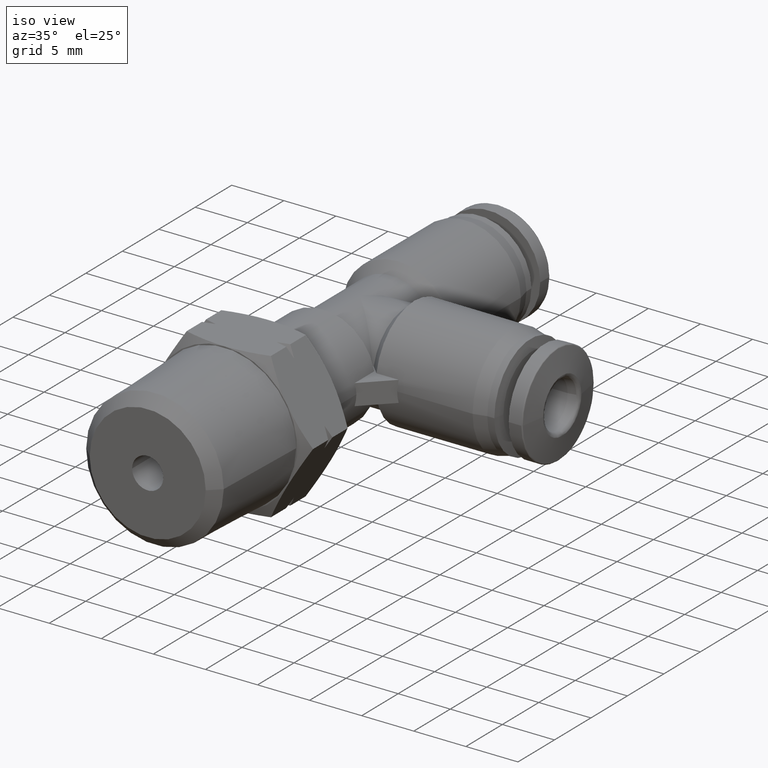
[diagram: clean part render]
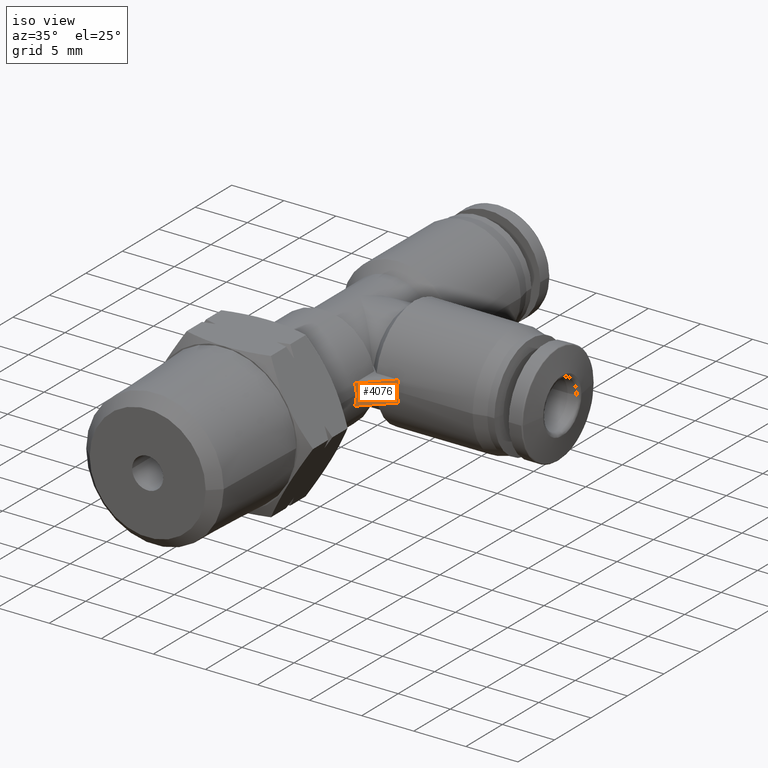
[diagram: same view with one face highlighted and labeled with its STEP entity id]
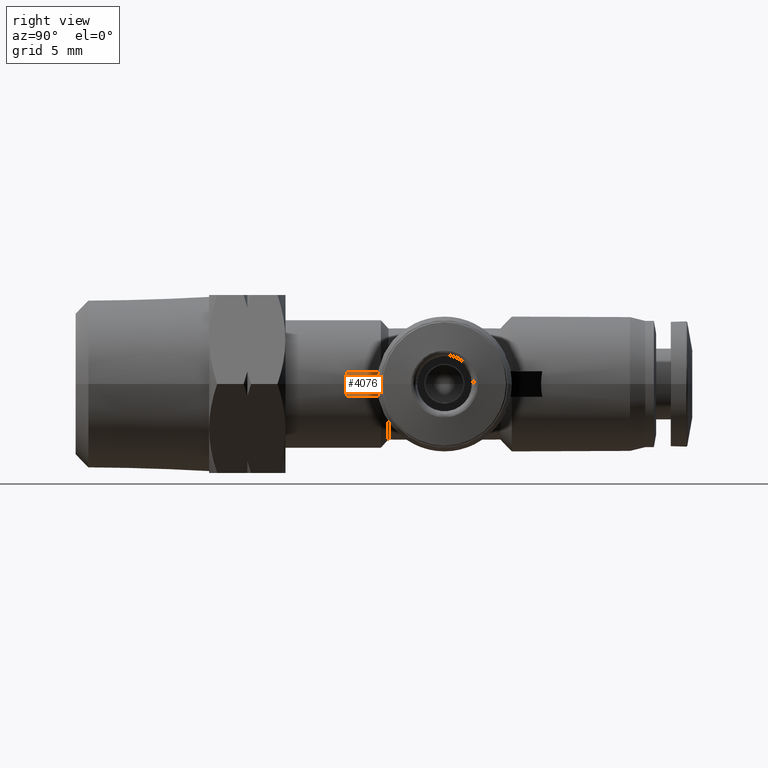
[diagram: same view with one face highlighted and labeled with its STEP entity id]
A machine part, iso view. The second image highlights one B-rep face of the part: STEP entity #4076.
A second angle (right view) of the same face is appended — the face is thin or edge-on in the first view.
In plain terms, the highlighted planar face has unit normal (0.7071, -0.7071, 0).
Its self-contained STEP definition (entity closure, byte-faithful):
#53 = CARTESIAN_POINT ( 'NONE',  ( 0.2906231102204520600, 0.2847175984096488900, 0.02638521026696140700 ) ) ;
#153 = CARTESIAN_POINT ( 'NONE',  ( 0.1975022053507918300, 0.1915966935399997000, -0.02639951658403306600 ) ) ;
#220 = VERTEX_POINT ( 'NONE', #2347 ) ;
#276 = EDGE_CURVE ( 'NONE', #4939, #2079, #375, .T. ) ;
#310 = VERTEX_POINT ( 'NONE', #1188 ) ;
#335 = CARTESIAN_POINT ( 'NONE',  ( 0.1948818897636948900, 0.1889763779529030600, 0.03937007874015748000 ) ) ;
#375 =( BOUNDED_CURVE ( )  B_SPLINE_CURVE ( 3, ( #2010, #1583, #1388, #1402 ),
 .UNSPECIFIED., .F., .F. ) 
 B_SPLINE_CURVE_WITH_KNOTS ( ( 4, 4 ),
 ( 1.224646799147353500E-016, 0.1993373049824015100 ),
 .UNSPECIFIED. ) 
 CURVE ( )  GEOMETRIC_REPRESENTATION_ITEM ( )  RATIONAL_B_SPLINE_CURVE ( ( 1.000000000000000000, 0.9966914601399901000, 0.9966914601399901000, 1.000000000000000000 ) ) 
 REPRESENTATION_ITEM ( '' )  );
#469 = CARTESIAN_POINT ( 'NONE',  ( 0.2931178948081529200, 0.2872123829973495200, 0.03937007874015748000 ) ) ;
#703 = DIRECTION ( 'NONE',  ( 0.7071067811865893200, 0.7071067811865057200, 0.0000000000000000000 ) ) ;
#936 = EDGE_CURVE ( 'NONE', #220, #2320, #1264, .T. ) ;
#1125 = EDGE_CURVE ( 'NONE', #310, #220, #2250, .T. ) ;
#1186 = VERTEX_POINT ( 'NONE', #469 ) ;
#1188 = CARTESIAN_POINT ( 'NONE',  ( 0.1948818897636949700, 0.1889763779529031200, -0.03937007874015738300 ) ) ;
#1264 =( BOUNDED_CURVE ( )  B_SPLINE_CURVE ( 3, ( #3522, #2232, #3757, #2584 ),
 .UNSPECIFIED., .F., .T. ) 
 B_SPLINE_CURVE_WITH_KNOTS ( ( 4, 4 ),
 ( 2.951775592245025100, 3.141592653589793100 ),
 .UNSPECIFIED. ) 
 CURVE ( )  GEOMETRIC_REPRESENTATION_ITEM ( )  RATIONAL_B_SPLINE_CURVE ( ( 1.000000000000000000, 0.9969997100748078100, 0.9969997100748078100, 1.000000000000000000 ) ) 
 REPRESENTATION_ITEM ( '' )  );
#1388 = CARTESIAN_POINT ( 'NONE',  ( 0.1975022053507918300, 0.1915966935399997000, 0.02639951658403309100 ) ) ;
#1402 = CARTESIAN_POINT ( 'NONE',  ( 0.1948818897636949400, 0.1889763779529031200, 0.03937007874015748000 ) ) ;
#1461 = CARTESIAN_POINT ( 'NONE',  ( 0.1988188976377122400, 0.1929133858269199100, 2.434829266020378600E-017 ) ) ;
#1516 = CARTESIAN_POINT ( 'NONE',  ( 0.1988188976377122400, 0.1929133858269198900, -0.01323259371483414400 ) ) ;
#1532 = VECTOR ( 'NONE', #703, 39.37007874015748100 ) ;
#1583 = CARTESIAN_POINT ( 'NONE',  ( 0.1988188976377122400, 0.1929133858269198900, 0.01323259371483419400 ) ) ;
#1628 = EDGE_CURVE ( 'NONE', #2079, #1186, #3599, .T. ) ;
#1659 = PLANE ( 'NONE',  #4057 ) ;
#2010 = CARTESIAN_POINT ( 'NONE',  ( 0.1988188976377122400, 0.1929133858269199100, 2.434829266020378600E-017 ) ) ;
#2026 = CARTESIAN_POINT ( 'NONE',  ( 0.1988188976376465700, 0.1929133858268542400, -0.03937007874015748000 ) ) ;
#2048 = ORIENTED_EDGE ( 'NONE', *, *, #1628, .F. ) ;
#2079 = VERTEX_POINT ( 'NONE', #3806 ) ;
#2110 =( BOUNDED_CURVE ( )  B_SPLINE_CURVE ( 3, ( #2327, #5098, #53, #3286 ),
 .UNSPECIFIED., .F., .F. ) 
 B_SPLINE_CURVE_WITH_KNOTS ( ( 4, 4 ),
 ( 3.141592653589793100, 3.331409714934561200 ),
 .UNSPECIFIED. ) 
 CURVE ( )  GEOMETRIC_REPRESENTATION_ITEM ( )  RATIONAL_B_SPLINE_CURVE ( ( 1.000000000000000000, 0.9969997100748078100, 0.9969997100748078100, 1.000000000000000000 ) ) 
 REPRESENTATION_ITEM ( '' )  );
#2232 = CARTESIAN_POINT ( 'NONE',  ( 0.2906231102204520600, 0.2847175984096489400, -0.02638521026696145600 ) ) ;
#2250 = LINE ( 'NONE', #2026, #5252 ) ;
#2289 = ORIENTED_EDGE ( 'NONE', *, *, #936, .T. ) ;
#2320 = VERTEX_POINT ( 'NONE', #4486 ) ;
#2327 = CARTESIAN_POINT ( 'NONE',  ( 0.2893700787400115800, 0.2834645669292085700, 2.555365368298896400E-017 ) ) ;
#2347 = CARTESIAN_POINT ( 'NONE',  ( 0.2931178948081530300, 0.2872123829973495800, -0.03937007874015748000 ) ) ;
#2584 = CARTESIAN_POINT ( 'NONE',  ( 0.2893700787400115800, 0.2834645669292085700, 2.555365368298896400E-017 ) ) ;
#2605 = ORIENTED_EDGE ( 'NONE', *, *, #1125, .T. ) ;
#2661 = DIRECTION ( 'NONE',  ( 0.7071067811865056100, -0.7071067811865895400, 0.0000000000000000000 ) ) ;
#2671 = ORIENTED_EDGE ( 'NONE', *, *, #276, .F. ) ;
#3286 = CARTESIAN_POINT ( 'NONE',  ( 0.2931178948081529200, 0.2872123829973495200, 0.03937007874015748000 ) ) ;
#3351 = EDGE_CURVE ( 'NONE', #310, #4939, #3844, .T. ) ;
#3415 = FACE_OUTER_BOUND ( 'NONE', #3668, .T. ) ;
#3522 = CARTESIAN_POINT ( 'NONE',  ( 0.2931178948081530300, 0.2872123829973495800, -0.03937007874015748000 ) ) ;
#3564 = DIRECTION ( 'NONE',  ( 0.7071067811865894300, 0.7071067811865055000, 0.0000000000000000000 ) ) ;
#3599 = LINE ( 'NONE', #335, #1532 ) ;
#3668 = EDGE_LOOP ( 'NONE', ( #4080, #2605, #2289, #4802, #2048, #2671 ) ) ;
#3757 = CARTESIAN_POINT ( 'NONE',  ( 0.2893700787400115800, 0.2834645669292085700, -0.01322235831481014700 ) ) ;
#3806 = CARTESIAN_POINT ( 'NONE',  ( 0.1948818897636949400, 0.1889763779529031200, 0.03937007874015748000 ) ) ;
#3844 =( BOUNDED_CURVE ( )  B_SPLINE_CURVE ( 3, ( #3865, #153, #1516, #4781 ),
 .UNSPECIFIED., .F., .F. ) 
 B_SPLINE_CURVE_WITH_KNOTS ( ( 4, 4 ),
 ( 6.083848002197185200, 6.283185307179586200 ),
 .UNSPECIFIED. ) 
 CURVE ( )  GEOMETRIC_REPRESENTATION_ITEM ( )  RATIONAL_B_SPLINE_CURVE ( ( 1.000000000000000000, 0.9966914601399901000, 0.9966914601399901000, 1.000000000000000000 ) ) 
 REPRESENTATION_ITEM ( '' )  );
#3865 = CARTESIAN_POINT ( 'NONE',  ( 0.1948818897636949700, 0.1889763779529031200, -0.03937007874015738300 ) ) ;
#4057 = AXIS2_PLACEMENT_3D ( 'NONE', #5364, #2661, #5782 ) ;
#4076 = ADVANCED_FACE ( 'NONE', ( #3415 ), #1659, .T. ) ;
#4080 = ORIENTED_EDGE ( 'NONE', *, *, #3351, .F. ) ;
#4486 = CARTESIAN_POINT ( 'NONE',  ( 0.2893700787400115800, 0.2834645669292085700, 2.555365368298896400E-017 ) ) ;
#4723 = EDGE_CURVE ( 'NONE', #2320, #1186, #2110, .T. ) ;
#4781 = CARTESIAN_POINT ( 'NONE',  ( 0.1988188976377122400, 0.1929133858269199100, 2.434829266020378600E-017 ) ) ;
#4802 = ORIENTED_EDGE ( 'NONE', *, *, #4723, .T. ) ;
#4939 = VERTEX_POINT ( 'NONE', #1461 ) ;
#5098 = CARTESIAN_POINT ( 'NONE',  ( 0.2893700787400115800, 0.2834645669292085700, 0.01322235831481009500 ) ) ;
#5252 = VECTOR ( 'NONE', #3564, 39.37007874015748900 ) ;
#5364 = CARTESIAN_POINT ( 'NONE',  ( 0.1988188976376465700, 0.1929133858268542400, 0.0000000000000000000 ) ) ;
#5782 = DIRECTION ( 'NONE',  ( 0.7071067811865894300, 0.7071067811865055000, 0.0000000000000000000 ) ) ;